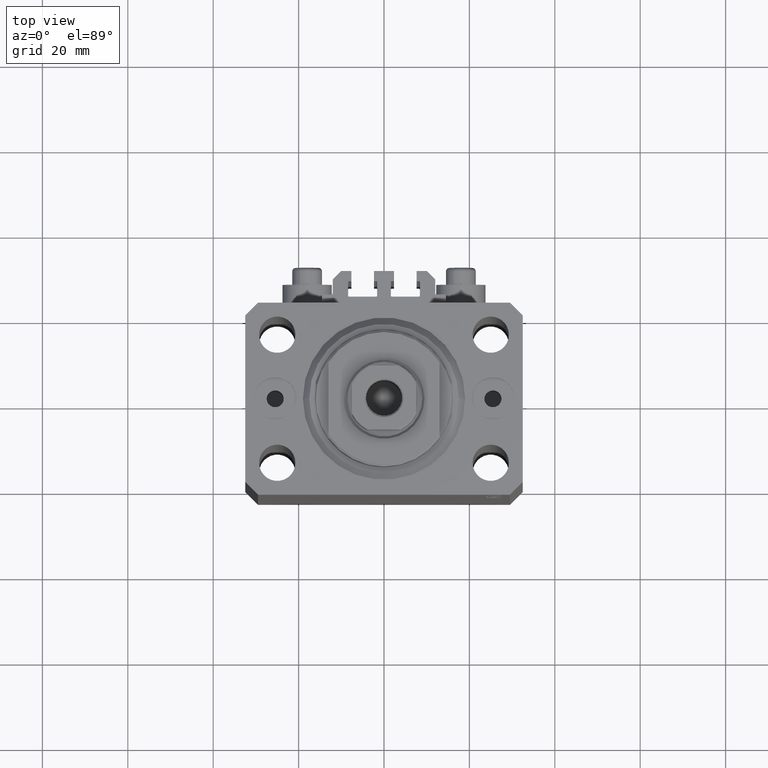
[diagram: clean part render]
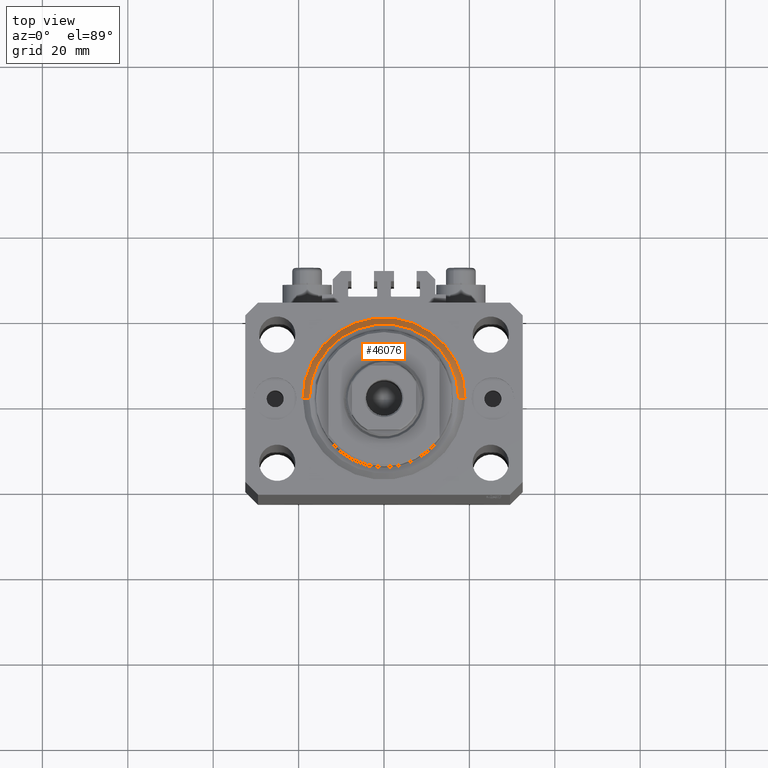
[diagram: same view with one face highlighted and labeled with its STEP entity id]
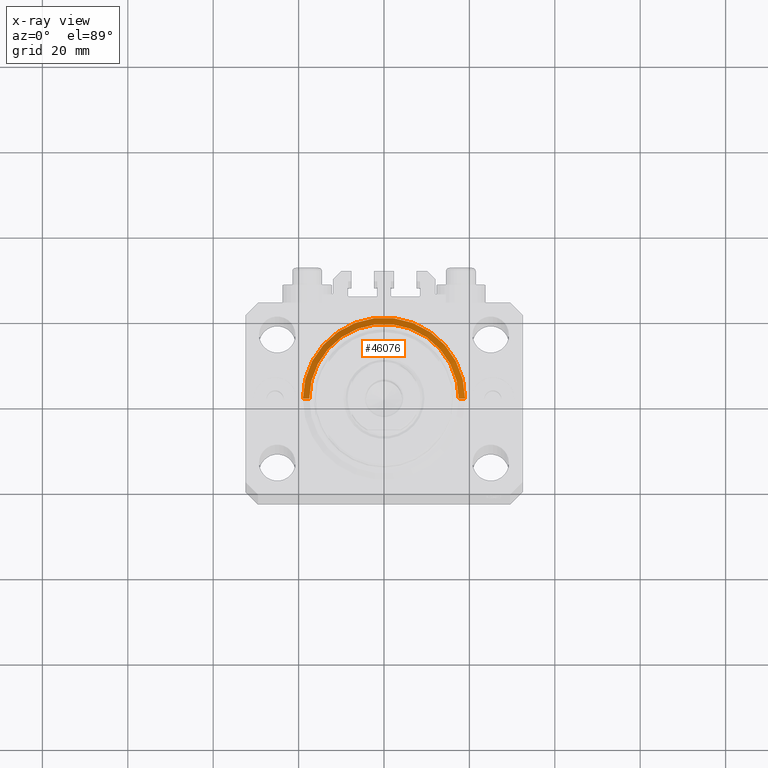
[diagram: x-ray of the same camera — body ghosted, the highlighted face saturated]
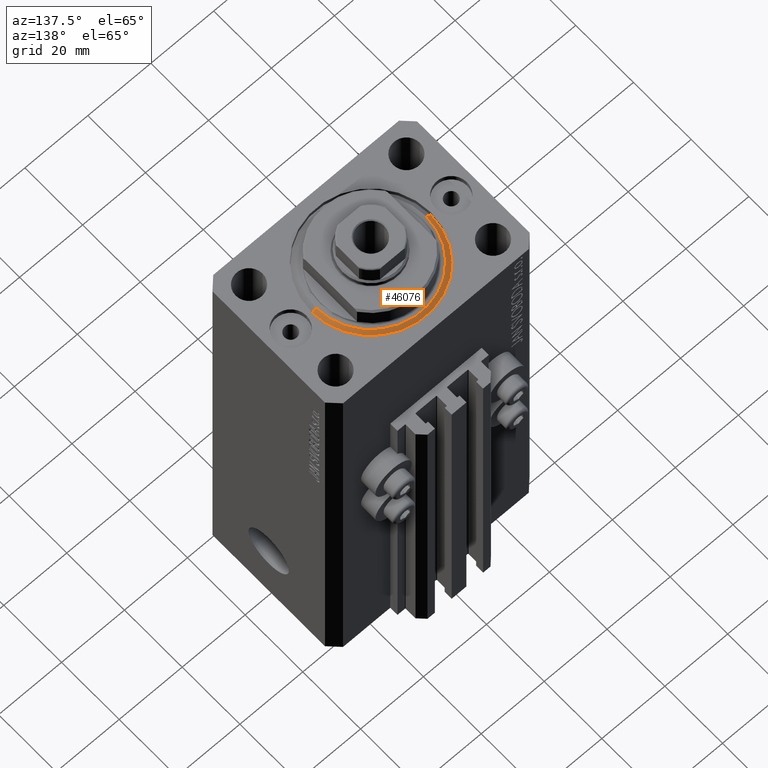
[diagram: same view with one face highlighted and labeled with its STEP entity id]
A machine part, top view. The second image highlights one B-rep face of the part: STEP entity #46076.
The next image is the same camera in x-ray: the body ghosted, the highlighted face saturated — about 0% of this face is hidden behind the body in this view.
A second angle (auxiliary view) of the same face is appended — the face is thin or edge-on in the first view.
In plain terms, the highlighted conical surface has half-angle 45 deg.
Its self-contained STEP definition (entity closure, byte-faithful):
#3160 = CIRCLE ( 'NONE', #19199, 19.00000000000000000 ) ;
#3913 = ORIENTED_EDGE ( 'NONE', *, *, #45502, .F. ) ;
#6960 = EDGE_CURVE ( 'NONE', #10211, #46526, #7306, .T. ) ;
#7306 = LINE ( 'NONE', #43590, #23883 ) ;
#7988 = EDGE_CURVE ( 'NONE', #10211, #29868, #43707, .T. ) ;
#10211 = VERTEX_POINT ( 'NONE', #28008 ) ;
#10499 = CARTESIAN_POINT ( 'NONE',  ( 0.000000000000000000, 0.000000000000000000, 1.500000000000004885 ) ) ;
#10938 = AXIS2_PLACEMENT_3D ( 'NONE', #22343, #29967, #40706 ) ;
#11565 = CARTESIAN_POINT ( 'NONE',  ( -19.00000000000000000, 0.000000000000000000, 1.500000000000004885 ) ) ;
#12405 = VECTOR ( 'NONE', #28114, 1000.000000000000000 ) ;
#12797 = VERTEX_POINT ( 'NONE', #21242 ) ;
#19199 = AXIS2_PLACEMENT_3D ( 'NONE', #22764, #37328, #33981 ) ;
#21242 = CARTESIAN_POINT ( 'NONE',  ( 19.00000000000000000, 2.326828918379970970E-15, 1.500000000000004885 ) ) ;
#21495 = DIRECTION ( 'NONE',  ( -0.000000000000000000, -0.000000000000000000, 1.000000000000000000 ) ) ;
#22343 = CARTESIAN_POINT ( 'NONE',  ( 0.000000000000000000, 0.000000000000000000, 0.000000000000000000 ) ) ;
#22764 = CARTESIAN_POINT ( 'NONE',  ( 0.000000000000000000, 0.000000000000000000, 1.500000000000004885 ) ) ;
#23883 = VECTOR ( 'NONE', #40001, 1000.000000000000000 ) ;
#24616 = ORIENTED_EDGE ( 'NONE', *, *, #31943, .F. ) ;
#28008 = CARTESIAN_POINT ( 'NONE',  ( -17.49999999999999289, 2.234980408443919215E-15, 0.000000000000000000 ) ) ;
#28114 = DIRECTION ( 'NONE',  ( 0.7071067811865483499, 0.000000000000000000, 0.7071067811865467956 ) ) ;
#29868 = VERTEX_POINT ( 'NONE', #31680 ) ;
#29967 = DIRECTION ( 'NONE',  ( -0.000000000000000000, -0.000000000000000000, -1.000000000000000000 ) ) ;
#31024 = ORIENTED_EDGE ( 'NONE', *, *, #7988, .F. ) ;
#31038 = ORIENTED_EDGE ( 'NONE', *, *, #6960, .T. ) ;
#31512 = EDGE_LOOP ( 'NONE', ( #31024, #31038, #3913, #24616 ) ) ;
#31680 = CARTESIAN_POINT ( 'NONE',  ( 17.49999999999999289, 0.000000000000000000, 0.000000000000000000 ) ) ;
#31701 = LINE ( 'NONE', #46259, #12405 ) ;
#31943 = EDGE_CURVE ( 'NONE', #29868, #12797, #31701, .T. ) ;
#32902 = AXIS2_PLACEMENT_3D ( 'NONE', #10499, #21495, #36057 ) ;
#33981 = DIRECTION ( 'NONE',  ( 1.000000000000000000, 0.000000000000000000, 0.000000000000000000 ) ) ;
#36057 = DIRECTION ( 'NONE',  ( 1.000000000000000000, 0.000000000000000000, 0.000000000000000000 ) ) ;
#37328 = DIRECTION ( 'NONE',  ( -0.000000000000000000, -0.000000000000000000, 1.000000000000000000 ) ) ;
#40001 = DIRECTION ( 'NONE',  ( -0.7071067811865483499, 8.659560562354943952E-17, 0.7071067811865467956 ) ) ;
#40706 = DIRECTION ( 'NONE',  ( 1.000000000000000000, 0.000000000000000000, 0.000000000000000000 ) ) ;
#43200 = FACE_OUTER_BOUND ( 'NONE', #31512, .T. ) ;
#43590 = CARTESIAN_POINT ( 'NONE',  ( -19.00000000000000000, 2.326828918379970970E-15, 1.500000000000004885 ) ) ;
#43707 = CIRCLE ( 'NONE', #10938, 17.49999999999999289 ) ;
#44319 = CONICAL_SURFACE ( 'NONE', #32902, 19.00000000000000000, 0.7853981633974492782 ) ;
#45502 = EDGE_CURVE ( 'NONE', #12797, #46526, #3160, .T. ) ;
#46076 = ADVANCED_FACE ( 'NONE', ( #43200 ), #44319, .T. ) ;
#46259 = CARTESIAN_POINT ( 'NONE',  ( 19.00000000000000000, 0.000000000000000000, 1.500000000000004885 ) ) ;
#46526 = VERTEX_POINT ( 'NONE', #11565 ) ;